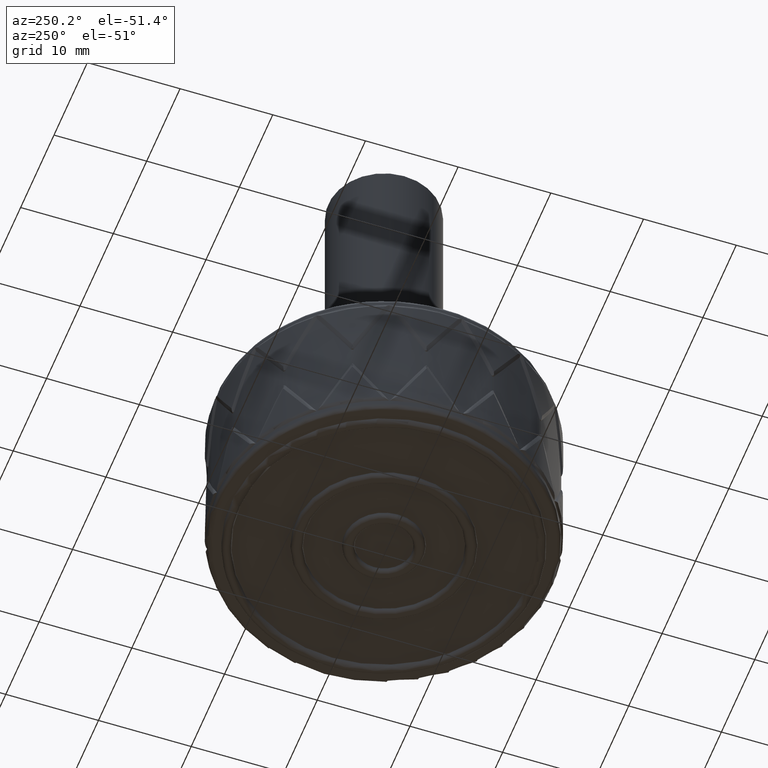
[diagram: clean part render]
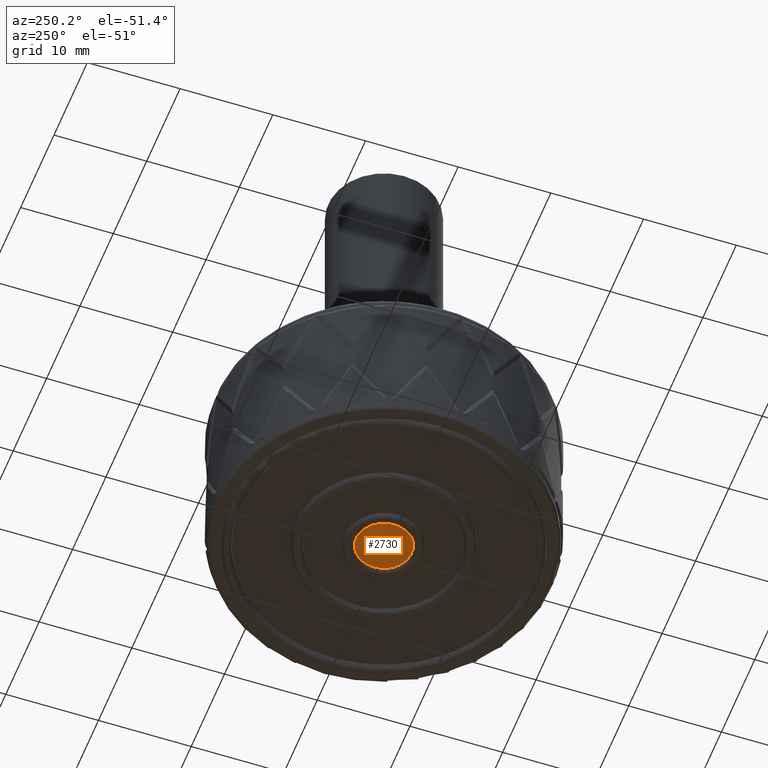
[diagram: same view with one face highlighted and labeled with its STEP entity id]
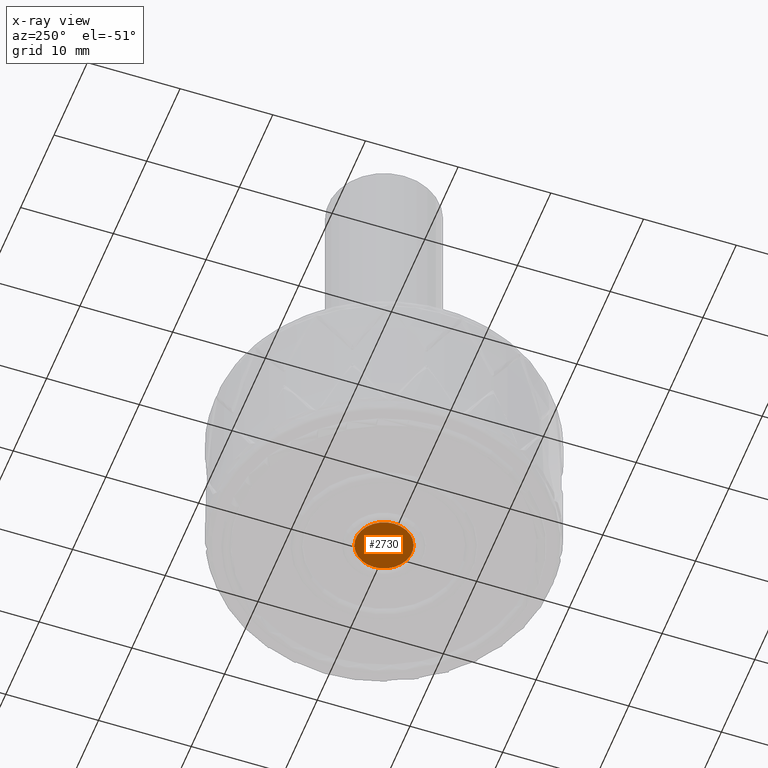
[diagram: x-ray of the same camera — body ghosted, the highlighted face saturated]
A machine part, auxiliary view. The second image highlights one B-rep face of the part: STEP entity #2730.
The next image is the same camera in x-ray: the body ghosted, the highlighted face saturated — about 0% of this face is hidden behind the body in this view.
In plain terms, the highlighted planar face has unit normal (0, 0, 1).
Its self-contained STEP definition (entity closure, byte-faithful):
#550=PLANE('',#2806);
#753=FACE_OUTER_BOUND('',#956,.T.);
#956=EDGE_LOOP('',(#2527));
#976=CIRCLE('',#2799,3.);
#1262=VERTEX_POINT('',#12695);
#1683=EDGE_CURVE('',#1262,#1262,#976,.T.);
#2527=ORIENTED_EDGE('',*,*,#1683,.T.);
#2730=ADVANCED_FACE('',(#753),#550,.F.);
#2799=AXIS2_PLACEMENT_3D('',#12696,#2941,#2942);
#2806=AXIS2_PLACEMENT_3D('',#12705,#2955,#2956);
#2941=DIRECTION('center_axis',(0.,0.,-1.));
#2942=DIRECTION('ref_axis',(1.,0.,0.));
#2955=DIRECTION('center_axis',(0.,0.,1.));
#2956=DIRECTION('ref_axis',(1.,0.,0.));
#12695=CARTESIAN_POINT('',(-3.,3.67394039744206E-16,0.));
#12696=CARTESIAN_POINT('Origin',(0.,0.,0.));
#12705=CARTESIAN_POINT('Origin',(-1.00608444552037E-15,4.11193712824132E-16,
0.));